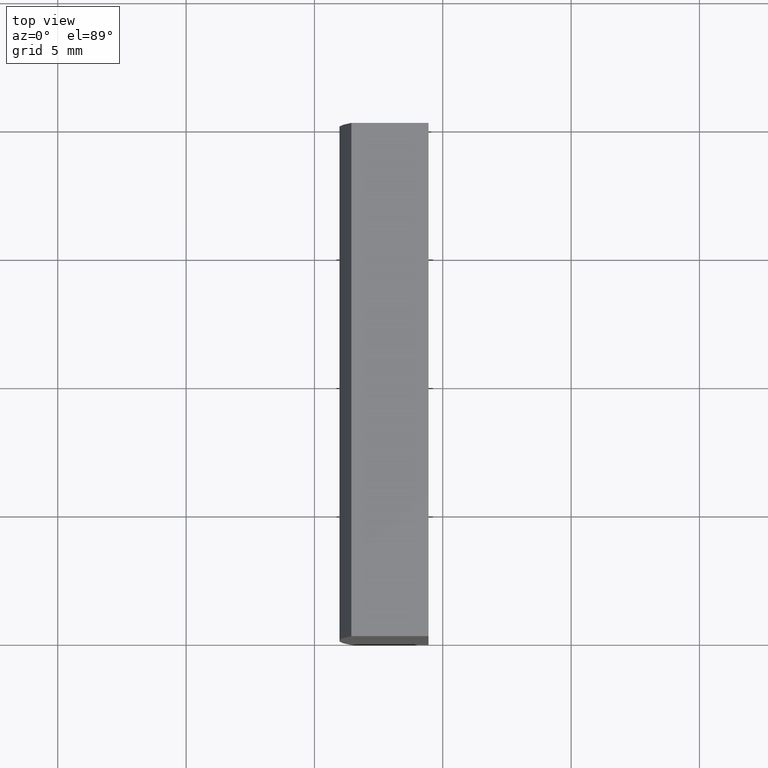
[diagram: clean part render]
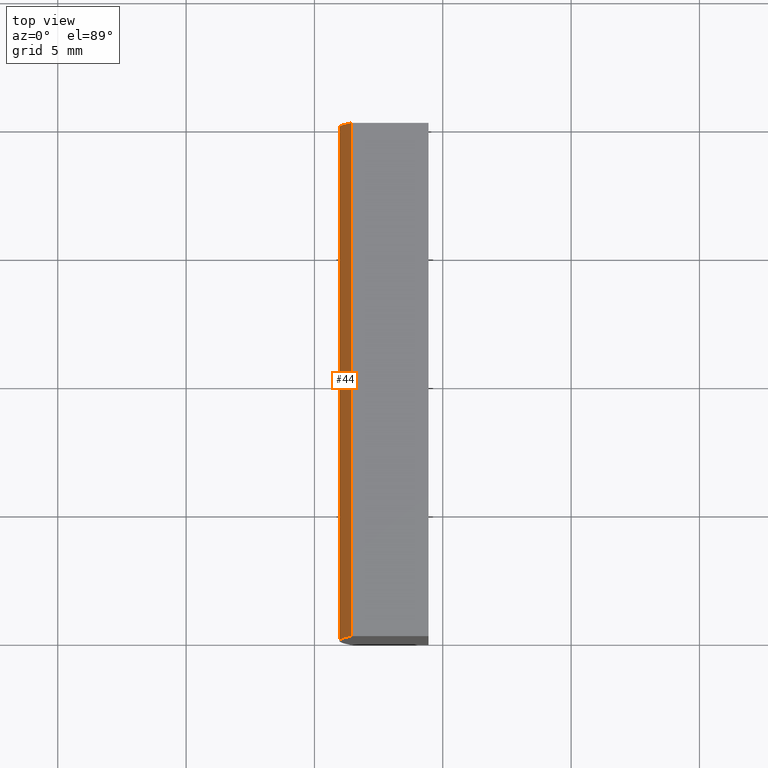
[diagram: same view with one face highlighted and labeled with its STEP entity id]
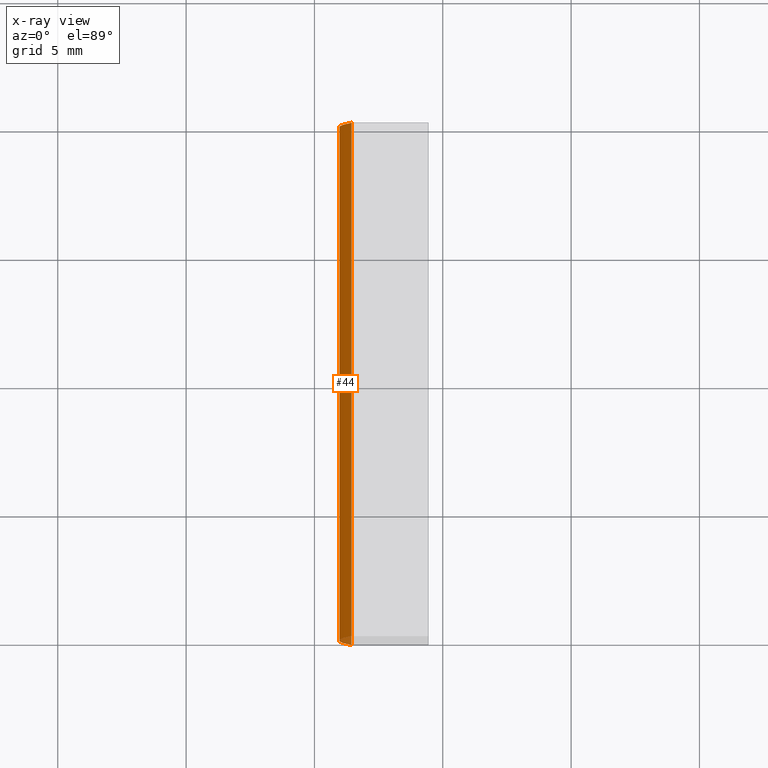
[diagram: x-ray of the same camera — body ghosted, the highlighted face saturated]
A machine part, top view. The second image highlights one B-rep face of the part: STEP entity #44.
The next image is the same camera in x-ray: the body ghosted, the highlighted face saturated — about 1% of this face is hidden behind the body in this view.
In plain terms, the highlighted cylindrical surface (partial cylindrical patch) has radius 103.4 mm, axis along (-0, -1, -0).
Its self-contained STEP definition (entity closure, byte-faithful):
#7 = CARTESIAN_POINT ( 'NONE',  ( -98.56010064939295000, 20.00000000000000000, -10.00000000000000000 ) ) ;
#23 = CARTESIAN_POINT ( 'NONE',  ( -98.56010064939296500, 20.00000000000000000, 10.00000000000000000 ) ) ;
#28 = DIRECTION ( 'NONE',  ( 0.0000000000000000000, 1.000000000000000000, 0.0000000000000000000 ) ) ;
#41 = CARTESIAN_POINT ( 'NONE',  ( -98.56010064939296500, 0.0000000000000000000, 10.00000000000000000 ) ) ;
#44 = ADVANCED_FACE ( 'NONE', ( #139 ), #80, .T. ) ;
#47 = EDGE_CURVE ( 'NONE', #99, #176, #82, .T. ) ;
#57 = EDGE_LOOP ( 'NONE', ( #111, #108, #104, #153 ) ) ;
#58 = AXIS2_PLACEMENT_3D ( 'NONE', #87, #28, #166 ) ;
#80 = CYLINDRICAL_SURFACE ( 'NONE', #151, 103.4000000000000200 ) ;
#82 = CIRCLE ( 'NONE', #58, 103.4000000000000200 ) ;
#87 = CARTESIAN_POINT ( 'NONE',  ( 4.355204334851265500, 0.0000000000000000000, 4.286263797015675000E-017 ) ) ;
#90 = DIRECTION ( 'NONE',  ( 0.0000000000000000000, 0.0000000000000000000, 1.000000000000000000 ) ) ;
#95 = CARTESIAN_POINT ( 'NONE',  ( -98.56010064939295000, 0.0000000000000000000, -10.00000000000000000 ) ) ;
#99 = VERTEX_POINT ( 'NONE', #95 ) ;
#101 = EDGE_CURVE ( 'NONE', #149, #99, #122, .T. ) ;
#104 = ORIENTED_EDGE ( 'NONE', *, *, #142, .F. ) ;
#106 = CARTESIAN_POINT ( 'NONE',  ( 4.355204334851265500, 20.00000000000000000, 4.286263797015675000E-017 ) ) ;
#108 = ORIENTED_EDGE ( 'NONE', *, *, #175, .F. ) ;
#111 = ORIENTED_EDGE ( 'NONE', *, *, #47, .T. ) ;
#119 = CARTESIAN_POINT ( 'NONE',  ( -98.56010064939296500, 20.00000000000000000, 10.00000000000000000 ) ) ;
#122 = LINE ( 'NONE', #141, #188 ) ;
#124 = DIRECTION ( 'NONE',  ( -0.0000000000000000000, -1.000000000000000000, -0.0000000000000000000 ) ) ;
#131 = DIRECTION ( 'NONE',  ( 0.0000000000000000000, 0.0000000000000000000, -1.000000000000000000 ) ) ;
#139 = FACE_OUTER_BOUND ( 'NONE', #57, .T. ) ;
#141 = CARTESIAN_POINT ( 'NONE',  ( -98.56010064939295000, 20.00000000000000000, -10.00000000000000000 ) ) ;
#142 = EDGE_CURVE ( 'NONE', #149, #161, #183, .T. ) ;
#144 = LINE ( 'NONE', #119, #163 ) ;
#147 = AXIS2_PLACEMENT_3D ( 'NONE', #160, #181, #90 ) ;
#149 = VERTEX_POINT ( 'NONE', #7 ) ;
#150 = DIRECTION ( 'NONE',  ( -0.0000000000000000000, -1.000000000000000000, -0.0000000000000000000 ) ) ;
#151 = AXIS2_PLACEMENT_3D ( 'NONE', #106, #197, #131 ) ;
#153 = ORIENTED_EDGE ( 'NONE', *, *, #101, .T. ) ;
#160 = CARTESIAN_POINT ( 'NONE',  ( 4.355204334851265500, 20.00000000000000000, 4.286263797015675000E-017 ) ) ;
#161 = VERTEX_POINT ( 'NONE', #23 ) ;
#163 = VECTOR ( 'NONE', #124, 1000.000000000000000 ) ;
#166 = DIRECTION ( 'NONE',  ( 0.0000000000000000000, 0.0000000000000000000, 1.000000000000000000 ) ) ;
#175 = EDGE_CURVE ( 'NONE', #161, #176, #144, .T. ) ;
#176 = VERTEX_POINT ( 'NONE', #41 ) ;
#181 = DIRECTION ( 'NONE',  ( 0.0000000000000000000, 1.000000000000000000, 0.0000000000000000000 ) ) ;
#183 = CIRCLE ( 'NONE', #147, 103.4000000000000200 ) ;
#188 = VECTOR ( 'NONE', #150, 1000.000000000000000 ) ;
#197 = DIRECTION ( 'NONE',  ( -0.0000000000000000000, -1.000000000000000000, -0.0000000000000000000 ) ) ;